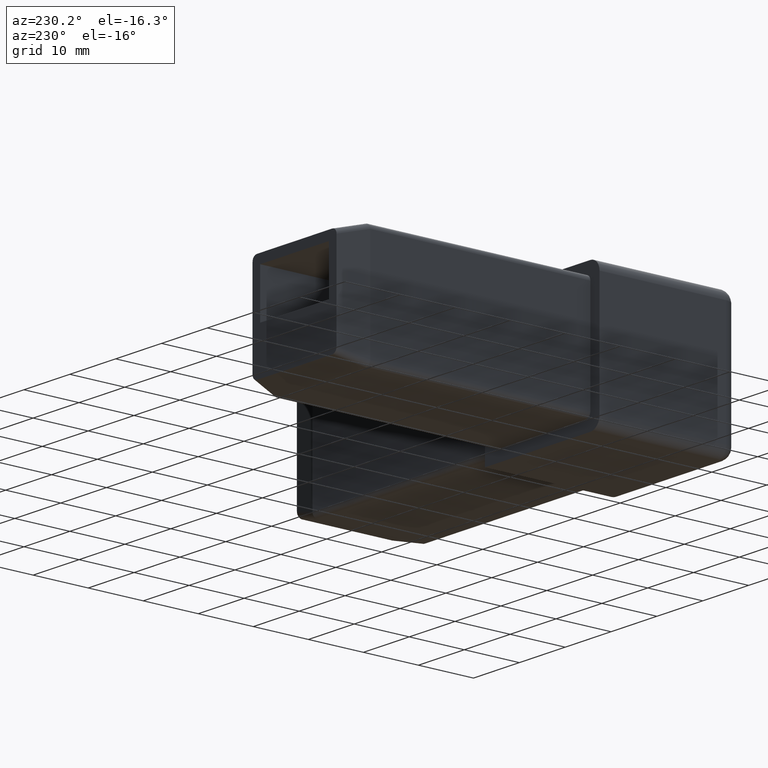
[diagram: clean part render]
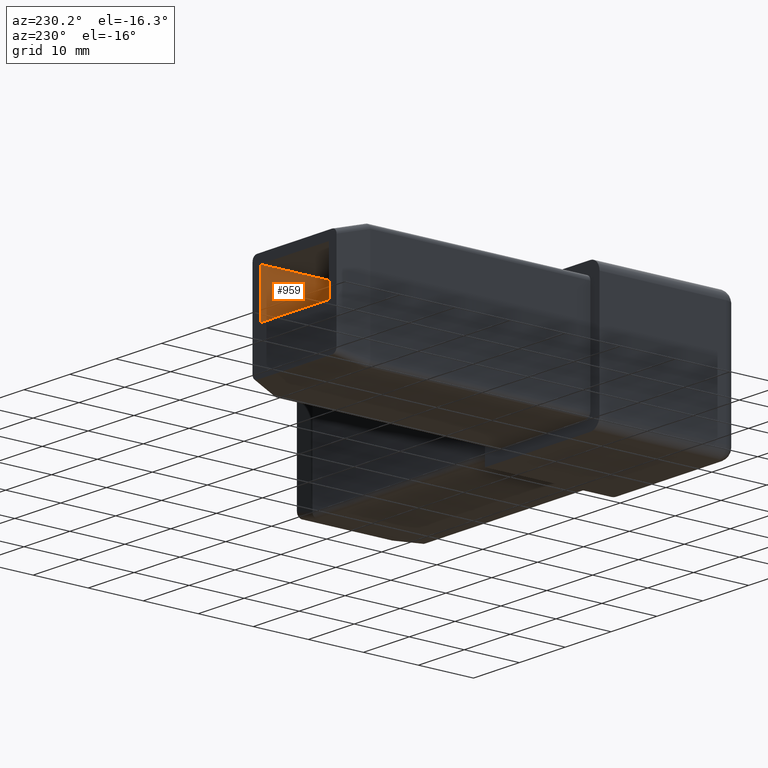
[diagram: same view with one face highlighted and labeled with its STEP entity id]
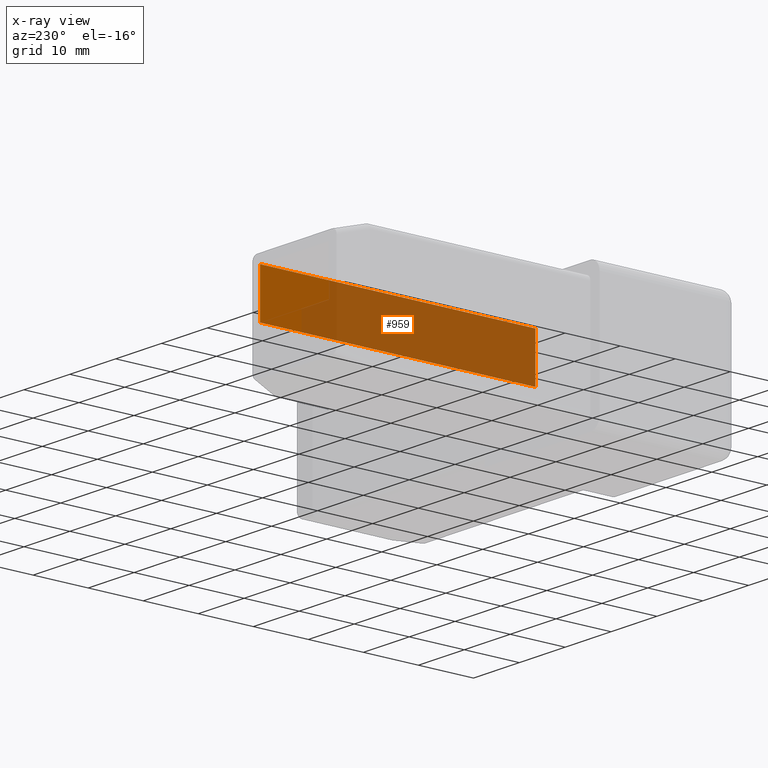
[diagram: x-ray of the same camera — body ghosted, the highlighted face saturated]
A machine part, auxiliary view. The second image highlights one B-rep face of the part: STEP entity #959.
The next image is the same camera in x-ray: the body ghosted, the highlighted face saturated — about 80% of this face is hidden behind the body in this view.
In plain terms, the highlighted planar face has unit normal (1, 0, 0).
Its self-contained STEP definition (entity closure, byte-faithful):
#94=FACE_OUTER_BOUND('',#149,.T.);
#149=EDGE_LOOP('',(#643,#644,#645,#646));
#212=LINE('',#1441,#307);
#213=LINE('',#1444,#308);
#214=LINE('',#1446,#309);
#215=LINE('',#1447,#310);
#307=VECTOR('',#1131,50.);
#308=VECTOR('',#1134,8.49999999999996);
#309=VECTOR('',#1135,8.49999999999997);
#310=VECTOR('',#1136,50.);
#400=VERTEX_POINT('',#1437);
#401=VERTEX_POINT('',#1439);
#402=VERTEX_POINT('',#1443);
#403=VERTEX_POINT('',#1445);
#496=EDGE_CURVE('',#401,#400,#212,.T.);
#497=EDGE_CURVE('',#400,#402,#213,.T.);
#498=EDGE_CURVE('',#401,#403,#214,.T.);
#499=EDGE_CURVE('',#403,#402,#215,.T.);
#643=ORIENTED_EDGE('',*,*,#497,.F.);
#644=ORIENTED_EDGE('',*,*,#496,.F.);
#645=ORIENTED_EDGE('',*,*,#498,.T.);
#646=ORIENTED_EDGE('',*,*,#499,.T.);
#927=PLANE('',#1016);
#959=ADVANCED_FACE('',(#94),#927,.F.);
#1016=AXIS2_PLACEMENT_3D('',#1442,#1132,#1133);
#1131=DIRECTION('',(-1.25002888698536E-15,1.,0.));
#1132=DIRECTION('center_axis',(1.,1.25002888698536E-15,0.));
#1133=DIRECTION('ref_axis',(0.,0.,-1.));
#1134=DIRECTION('',(0.,0.,1.));
#1135=DIRECTION('',(-2.09463867609825E-16,-2.96059473233375E-16,1.));
#1136=DIRECTION('',(-1.25002888698536E-15,1.,0.));
#1437=CARTESIAN_POINT('',(7.49999999999995,57.5,11.5));
#1439=CARTESIAN_POINT('',(7.50000000000002,7.50000000000003,11.5));
#1441=CARTESIAN_POINT('',(7.50000000000001,12.5,11.5));
#1442=CARTESIAN_POINT('Origin',(7.50000000000001,12.5,20.));
#1443=CARTESIAN_POINT('',(7.49999999999995,57.5,20.));
#1444=CARTESIAN_POINT('',(7.49999999999995,57.5,16.25));
#1445=CARTESIAN_POINT('',(7.49999999999998,7.5,20.));
#1446=CARTESIAN_POINT('',(7.49999999999998,7.5,16.25));
#1447=CARTESIAN_POINT('',(7.50000000000001,12.5,20.));